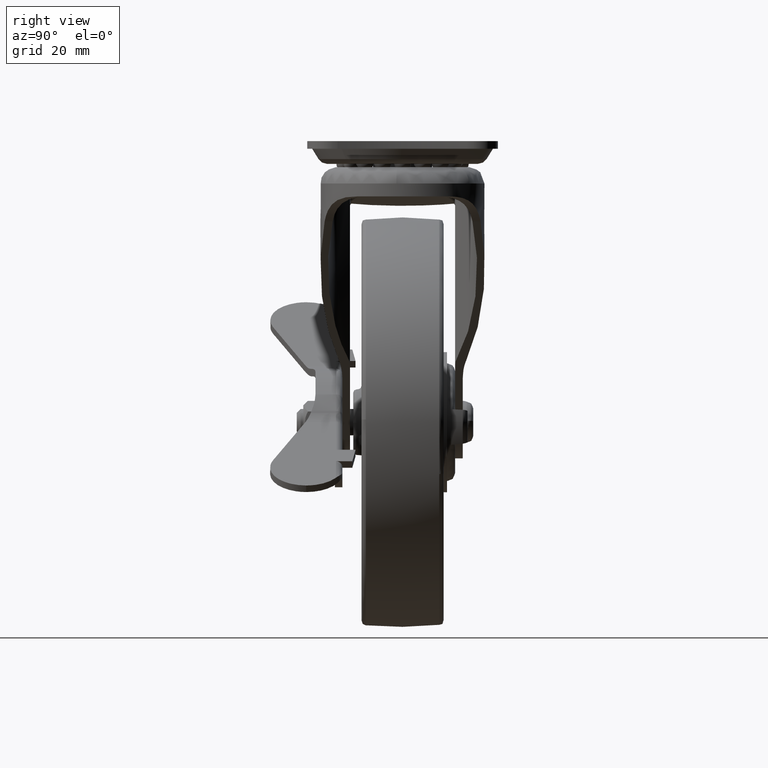
[diagram: clean part render]
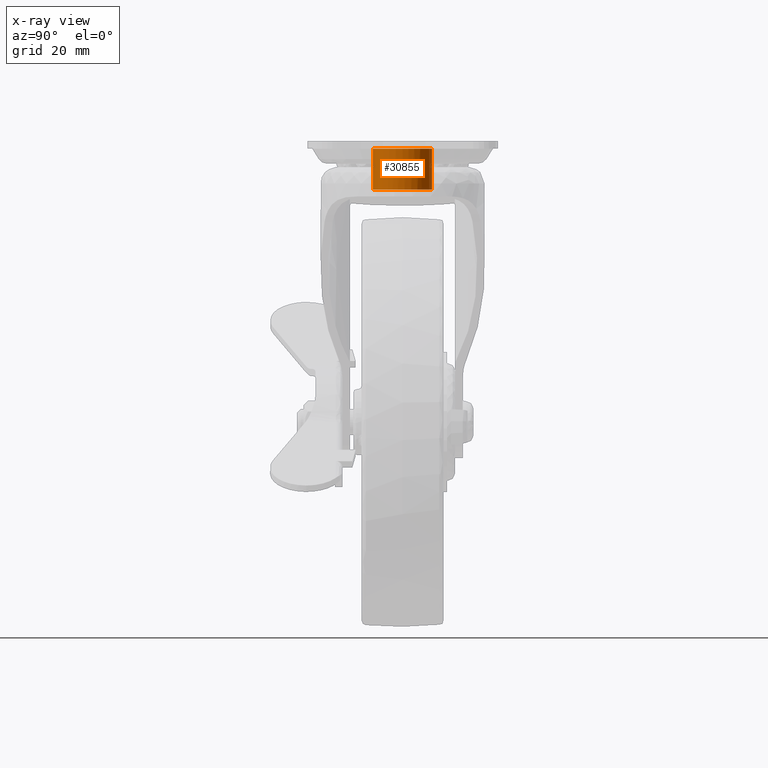
[diagram: x-ray — body ghosted, one internal face saturated and labeled with its STEP entity id]
A machine part, right view, then the same camera in x-ray: the body is ghosted and one INTERNAL B-rep face — a face not visible from any outside direction — is saturated and labeled: STEP entity #30855.
In plain terms, the highlighted face is a freeform B-spline surface patch.
Its self-contained STEP definition (entity closure, byte-faithful):
#30693=CARTESIAN_POINT('',(30.513516280560456,2.996597083307584,83.512496950000028));
#30694=CARTESIAN_POINT('',(30.777048386752529,3.742930629851667,83.512496950000028));
#30695=CARTESIAN_POINT('',(31.166798736540908,4.431812040931202,83.512496950000013));
#30696=CARTESIAN_POINT('',(35.598610777472118,12.265013304390298,83.512496950000013));
#30697=CARTESIAN_POINT('',(43.431812040931213,7.833201263459094,83.512496950000013));
#30698=CARTESIAN_POINT('',(51.265013304390301,3.401389222527892,83.512496950000013));
#30699=CARTESIAN_POINT('',(46.833201263459102,-4.431812040931202,83.512496950000013));
#30700=CARTESIAN_POINT('',(42.401389222527882,-12.265013304390298,83.512496950000013));
#30701=CARTESIAN_POINT('',(34.568187959068787,-7.833201263459094,83.512496950000013));
#30702=CARTESIAN_POINT('',(30.513516280560456,2.996597083307584,70.379686551250089));
#30703=CARTESIAN_POINT('',(30.777048386752529,3.742930629851667,70.379686551250089));
#30704=CARTESIAN_POINT('',(31.166798736540908,4.431812040931202,70.379686551250089));
#30705=CARTESIAN_POINT('',(35.598610777472118,12.265013304390298,70.379686551250089));
#30706=CARTESIAN_POINT('',(43.431812040931213,7.833201263459094,70.379686551250089));
#30707=CARTESIAN_POINT('',(51.265013304390301,3.401389222527892,70.379686551250089));
#30708=CARTESIAN_POINT('',(46.833201263459102,-4.431812040931202,70.379686551250089));
#30709=CARTESIAN_POINT('',(42.401389222527882,-12.265013304390298,70.379686551250089));
#30710=CARTESIAN_POINT('',(34.568187959068787,-7.833201263459094,70.379686551250089));
#30718=(BOUNDED_SURFACE()B_SPLINE_SURFACE(2,1,((#30693,#30702),(#30694,#30703),(#30695,#30704),(#30696,#30705),(#30697,#30706),(#30698,#30707),(#30699,#30708),(#30700,#30709),(#30701,#30710)),.UNSPECIFIED.,.F.,.F.,.U.)B_SPLINE_SURFACE_WITH_KNOTS((3,2,2,2,3),(2,2),(0.0,1.789402589451772,16.701090834883200,31.612779080314631,46.524467325746059),(0.0,13.132810398749950),.UNSPECIFIED.)GEOMETRIC_REPRESENTATION_ITEM()RATIONAL_B_SPLINE_SURFACE(((0.938140952186599,0.938140952186599),(0.964852813742386,0.964852813742386),(1.0,1.0),(0.707106781186548,0.707106781186548),(1.0,1.0),(0.707106781186548,0.707106781186548),(1.0,1.0),(0.707106781186548,0.707106781186548),(1.0,1.0)))REPRESENTATION_ITEM('')SURFACE());
#30719=CARTESIAN_POINT('',(30.513516782486001,2.996596911058819,83.199997000000010));
#30720=VERTEX_POINT('',#30719);
#30721=CARTESIAN_POINT('',(39.000003380316379,8.999999999999366,83.199997000000010));
#30722=VERTEX_POINT('',#30721);
#30723=CARTESIAN_POINT('',(30.513516782486001,2.996596911058819,83.199997000000010));
#30724=CARTESIAN_POINT('',(30.877801446802270,4.031178483031472,83.199997000000053));
#30725=CARTESIAN_POINT('',(31.786670795892981,5.607045829944839,83.199996999999939));
#30726=CARTESIAN_POINT('',(33.699325925374410,7.390046997759143,83.199997000000138));
#30727=CARTESIAN_POINT('',(35.999098521404100,8.647406520791257,83.199996999999797));
#30728=CARTESIAN_POINT('',(37.903203679654510,9.000909725873944,83.199996999999954));
#30729=CARTESIAN_POINT('',(39.000003380316379,8.999999999999366,83.199997000000010));
#30730=B_SPLINE_CURVE_WITH_KNOTS('',3,(#30723,#30724,#30725,#30726,#30727,#30728,#30729),.UNSPECIFIED.,.F.,.U.,(4,1,1,1,4),(0.000000154638641,3.290107867785069,5.368077606789704,7.792310083864081,11.082417797053219),.UNSPECIFIED.);
#30731=EDGE_CURVE('',#30720,#30722,#30730,.T.);
#30732=ORIENTED_EDGE('',*,*,#30731,.T.);
#30733=CARTESIAN_POINT('',(48.0,0.0,83.199996999999996));
#30734=VERTEX_POINT('',#30733);
#30735=CARTESIAN_POINT('',(39.000003380316379,8.999999999999366,83.199997000000010));
#30736=CARTESIAN_POINT('',(39.662675027836102,9.000096486792762,83.199996999999911));
#30737=CARTESIAN_POINT('',(41.098494086322930,8.840821358558515,83.199997000000138));
#30738=CARTESIAN_POINT('',(43.016574482935582,8.141259924261533,83.199996999999911));
#30739=CARTESIAN_POINT('',(44.784082797420623,6.991288696544883,83.199997000000081));
#30740=CARTESIAN_POINT('',(46.208928902937330,5.531190256705092,83.199997000000153));
#30741=CARTESIAN_POINT('',(47.283941090992762,3.712278037382125,83.199996999999485));
#30742=CARTESIAN_POINT('',(47.876718248017021,1.840765017877382,83.199996999999883));
#30743=CARTESIAN_POINT('',(48.000061440854878,0.589044718919582,83.199997000000465));
#30744=CARTESIAN_POINT('',(48.0,0.0,83.199996999999996));
#30745=B_SPLINE_CURVE_WITH_KNOTS('',3,(#30735,#30736,#30737,#30738,#30739,#30740,#30741,#30742,#30743,#30744),.UNSPECIFIED.,.F.,.U.,(4,1,1,1,1,1,1,4),(0.000000316882772,1.988029783622610,4.307456440594940,6.074640952362765,8.283492369797211,10.382042412151529,12.370114138852530,14.137253740689459),.UNSPECIFIED.);
#30746=EDGE_CURVE('',#30722,#30734,#30745,.T.);
#30747=ORIENTED_EDGE('',*,*,#30746,.T.);
#30748=CARTESIAN_POINT('',(38.999996619683607,-8.999999999999366,83.199996999999996));
#30749=VERTEX_POINT('',#30748);
#30750=CARTESIAN_POINT('',(48.0,0.0,83.199996999999996));
#30751=CARTESIAN_POINT('',(48.000519358783620,-0.920469335913292,83.199996999999726));
#30752=CARTESIAN_POINT('',(47.800521436435503,-2.208689444490922,83.199997000000494));
#30753=CARTESIAN_POINT('',(47.096919721293148,-4.032644839477416,83.199996999999513));
#30754=CARTESIAN_POINT('',(46.182996563614459,-5.557681896803937,83.199997000000664));
#30755=CARTESIAN_POINT('',(44.602846657851622,-7.177339372893703,83.199996999999769));
#30756=CARTESIAN_POINT('',(42.714273612358319,-8.293574602265835,83.199996999999172));
#30757=CARTESIAN_POINT('',(40.767100944939259,-8.883900637218373,83.199997000001488));
#30758=CARTESIAN_POINT('',(39.589044348221343,-9.000076943326571,83.199996999998390));
#30759=CARTESIAN_POINT('',(38.999996619683607,-8.999999999999366,83.199996999999996));
#30760=B_SPLINE_CURVE_WITH_KNOTS('',3,(#30750,#30751,#30752,#30753,#30754,#30755,#30756,#30757,#30758,#30759),.UNSPECIFIED.,.F.,.U.,(4,1,1,1,1,1,1,4),(0.000000315731539,2.761179021708891,3.865666058409408,5.853765064695978,8.062617951348901,10.602943239105610,12.370117475023861,14.137257551117671),.UNSPECIFIED.);
#30761=EDGE_CURVE('',#30734,#30749,#30760,.T.);
#30762=ORIENTED_EDGE('',*,*,#30761,.T.);
#30763=CARTESIAN_POINT('',(34.568187543324001,-7.833201860515387,83.199996999999996));
#30764=VERTEX_POINT('',#30763);
#30765=CARTESIAN_POINT('',(38.999996619683607,-8.999999999999366,83.199996999999996));
#30766=CARTESIAN_POINT('',(38.034511851967622,-9.000643026859297,83.199997000000295));
#30767=CARTESIAN_POINT('',(36.490343129424893,-8.748869337393211,83.199996999999613));
#30768=CARTESIAN_POINT('',(35.072295762138047,-8.118474045970254,83.199997000000124));
#30769=CARTESIAN_POINT('',(34.568187543324001,-7.833201860515387,83.199996999999996));
#30770=B_SPLINE_CURVE_WITH_KNOTS('',3,(#30765,#30766,#30767,#30768,#30769),.UNSPECIFIED.,.F.,.U.,(4,1,4),(0.000000037019849,2.896184817385888,4.633896016672830),.UNSPECIFIED.);
#30771=EDGE_CURVE('',#30749,#30764,#30770,.T.);
#30772=ORIENTED_EDGE('',*,*,#30771,.T.);
#30773=CARTESIAN_POINT('',(34.568187900155557,-7.833201230127672,70.699999000000091));
#30774=VERTEX_POINT('',#30773);
#30775=CARTESIAN_POINT('',(34.568187543324001,-7.833201860515387,83.199996999999996));
#30776=CARTESIAN_POINT('',(34.568187900155557,-7.833201230127672,70.699999000000091));
#30777=QUASI_UNIFORM_CURVE('',1,(#30775,#30776),.UNSPECIFIED.,.F.,.U.);
#30778=EDGE_CURVE('',#30764,#30774,#30777,.T.);
#30779=ORIENTED_EDGE('',*,*,#30778,.T.);
#30780=CARTESIAN_POINT('',(39.0,-9.0,70.699999000000091));
#30781=VERTEX_POINT('',#30780);
#30782=CARTESIAN_POINT('',(39.0,-9.0,70.699999000000091));
#30783=CARTESIAN_POINT('',(38.372491909138418,-9.000081624404643,70.699998999999963));
#30784=CARTESIAN_POINT('',(36.827892929193652,-8.837835192108150,70.699999000000446));
#30785=CARTESIAN_POINT('',(35.366212712772111,-8.285289036738297,70.699998999999892));
#30786=CARTESIAN_POINT('',(34.568187900155557,-7.833201230127672,70.699999000000091));
#30787=B_SPLINE_CURVE_WITH_KNOTS('',3,(#30782,#30783,#30784,#30785,#30786),.UNSPECIFIED.,.F.,.U.,(4,1,4),(0.000000037009188,1.882536659495390,4.633899210464075),.UNSPECIFIED.);
#30788=EDGE_CURVE('',#30781,#30774,#30787,.T.);
#30789=ORIENTED_EDGE('',*,*,#30788,.F.);
#30790=CARTESIAN_POINT('',(46.794228634060097,-4.500000000000170,70.699999000000091));
#30791=VERTEX_POINT('',#30790);
#30792=CARTESIAN_POINT('',(46.794228634060097,-4.500000000000170,70.699999000000091));
#30793=CARTESIAN_POINT('',(46.352796303629873,-5.265481913422989,70.699999000000005));
#30794=CARTESIAN_POINT('',(45.550236652081587,-6.275539496316245,70.699999000000332));
#30795=CARTESIAN_POINT('',(44.105198927550767,-7.461411654220654,70.699998999999806));
#30796=CARTESIAN_POINT('',(42.909175331366100,-8.151940029127095,70.699999000000346));
#30797=CARTESIAN_POINT('',(41.159659164271957,-8.810448770927632,70.699998999999750));
#30798=CARTESIAN_POINT('',(39.883639005070073,-9.000437451837618,70.699999000001100));
#30799=CARTESIAN_POINT('',(39.0,-9.0,70.699999000000091));
#30800=B_SPLINE_CURVE_WITH_KNOTS('',3,(#30792,#30793,#30794,#30795,#30796,#30797,#30798,#30799),.UNSPECIFIED.,.F.,.U.,(4,1,1,1,1,4),(0.000000151690831,2.650757432072162,3.828902846085739,5.595980393122463,6.774125807136153,9.424883087518746),.UNSPECIFIED.);
#30801=EDGE_CURVE('',#30791,#30781,#30800,.T.);
#30802=ORIENTED_EDGE('',*,*,#30801,.F.);
#30803=CARTESIAN_POINT('',(46.794228634059998,4.500000000000060,70.699999000000091));
#30804=VERTEX_POINT('',#30803);
#30805=CARTESIAN_POINT('',(46.794228634059998,4.500000000000060,70.699999000000091));
#30806=CARTESIAN_POINT('',(47.211766559538468,3.777435931776504,70.699999000000076));
#30807=CARTESIAN_POINT('',(47.824768388385870,2.261143324818773,70.699998999999977));
#30808=CARTESIAN_POINT('',(48.102365327759870,-0.148958772016063,70.699999000000247));
#30809=CARTESIAN_POINT('',(47.760616820970299,-2.450652622787259,70.699998999999778));
#30810=CARTESIAN_POINT('',(47.162536638848501,-3.862413531883038,70.699999000000219));
#30811=CARTESIAN_POINT('',(46.794228634060097,-4.500000000000170,70.699999000000091));
#30812=B_SPLINE_CURVE_WITH_KNOTS('',3,(#30805,#30806,#30807,#30808,#30809,#30810,#30811),.UNSPECIFIED.,.F.,.U.,(4,1,1,1,4),(0.000000151689227,2.503487337057442,4.859657060888002,7.215928804972347,9.424883087518900),.UNSPECIFIED.);
#30813=EDGE_CURVE('',#30804,#30791,#30812,.T.);
#30814=ORIENTED_EDGE('',*,*,#30813,.F.);
#30815=CARTESIAN_POINT('',(39.0,9.0,70.699999000000091));
#30816=VERTEX_POINT('',#30815);
#30817=CARTESIAN_POINT('',(39.0,9.0,70.699999000000091));
#30818=CARTESIAN_POINT('',(40.080090435505163,9.000975241435603,70.699999000000105));
#30819=CARTESIAN_POINT('',(41.797423081283462,8.686812807874397,70.699999000000048));
#30820=CARTESIAN_POINT('',(43.737515241462667,7.710030261897996,70.699999000000133));
#30821=CARTESIAN_POINT('',(45.387964384193893,6.465100588869702,70.699999000000247));
#30822=CARTESIAN_POINT('',(46.303810875988788,5.350596072418372,70.699998999999991));
#30823=CARTESIAN_POINT('',(46.794228634059998,4.500000000000060,70.699999000000091));
#30824=B_SPLINE_CURVE_WITH_KNOTS('',3,(#30817,#30818,#30819,#30820,#30821,#30822,#30823),.UNSPECIFIED.,.F.,.U.,(4,1,1,1,4),(0.000000151689138,3.239830347247875,5.154189092882278,6.479606045428966,9.424883087518705),.UNSPECIFIED.);
#30825=EDGE_CURVE('',#30816,#30804,#30824,.T.);
#30826=ORIENTED_EDGE('',*,*,#30825,.F.);
#30827=CARTESIAN_POINT('',(31.205771365939949,4.499999999999949,70.699999000000091));
#30828=VERTEX_POINT('',#30827);
#30829=CARTESIAN_POINT('',(31.205771365939949,4.499999999999949,70.699999000000091));
#30830=CARTESIAN_POINT('',(31.647277788692890,5.265402065767212,70.699998999999963));
#30831=CARTESIAN_POINT('',(32.603997974394133,6.469917454371982,70.699999000000318));
#30832=CARTESIAN_POINT('',(34.456246275447491,7.867313416030939,70.699999000000076));
#30833=CARTESIAN_POINT('',(36.545756904461847,8.773115358490008,70.699998999999849));
#30834=CARTESIAN_POINT('',(38.165485662679302,9.000301655091281,70.699999000000162));
#30835=CARTESIAN_POINT('',(39.0,9.0,70.699999000000091));
#30836=B_SPLINE_CURVE_WITH_KNOTS('',3,(#30829,#30830,#30831,#30832,#30833,#30834,#30835),.UNSPECIFIED.,.F.,.U.,(4,1,1,1,4),(0.000000151686988,2.650757432069797,4.565226178318778,6.921395902149804,9.424883087518841),.UNSPECIFIED.);
#30837=EDGE_CURVE('',#30828,#30816,#30836,.T.);
#30838=ORIENTED_EDGE('',*,*,#30837,.F.);
#30839=CARTESIAN_POINT('',(30.513516282117511,2.996597087717283,70.699999000000076));
#30840=VERTEX_POINT('',#30839);
#30841=CARTESIAN_POINT('',(30.513516282117511,2.996597087717283,70.699999000000076));
#30842=CARTESIAN_POINT('',(30.697441692947251,3.517573723128754,70.699999000000147));
#30843=CARTESIAN_POINT('',(30.929490705771919,4.021549470645602,70.699998999999991));
#30844=CARTESIAN_POINT('',(31.205771365939949,4.499999999999949,70.699999000000091));
#30845=B_SPLINE_CURVE_WITH_KNOTS('',3,(#30841,#30842,#30843,#30844),.UNSPECIFIED.,.F.,.U.,(4,4),(2.808542E-009,1.657475022065798),.UNSPECIFIED.);
#30846=EDGE_CURVE('',#30840,#30828,#30845,.T.);
#30847=ORIENTED_EDGE('',*,*,#30846,.F.);
#30848=CARTESIAN_POINT('',(30.513516782486001,2.996596911058819,83.199997000000010));
#30849=CARTESIAN_POINT('',(30.513516282117511,2.996597087717283,70.699999000000076));
#30850=QUASI_UNIFORM_CURVE('',1,(#30848,#30849),.UNSPECIFIED.,.F.,.U.);
#30851=EDGE_CURVE('',#30720,#30840,#30850,.T.);
#30852=ORIENTED_EDGE('',*,*,#30851,.F.);
#30853=EDGE_LOOP('',(#30732,#30747,#30762,#30772,#30779,#30789,#30802,#30814,#30826,#30838,#30847,#30852));
#30854=FACE_OUTER_BOUND('',#30853,.T.);
#30855=ADVANCED_FACE('',(#30854),#30718,.T.);